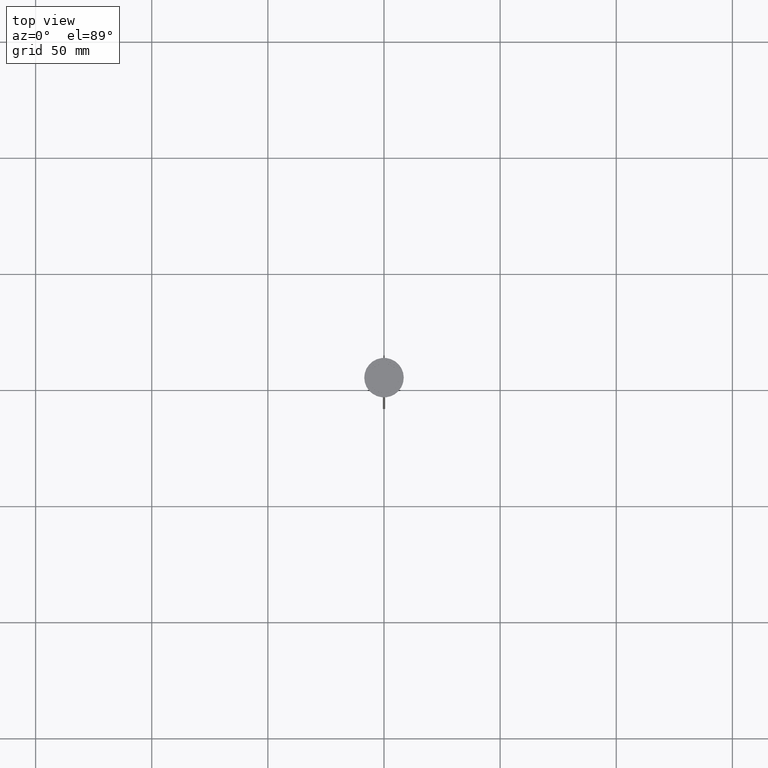
[diagram: clean part render]
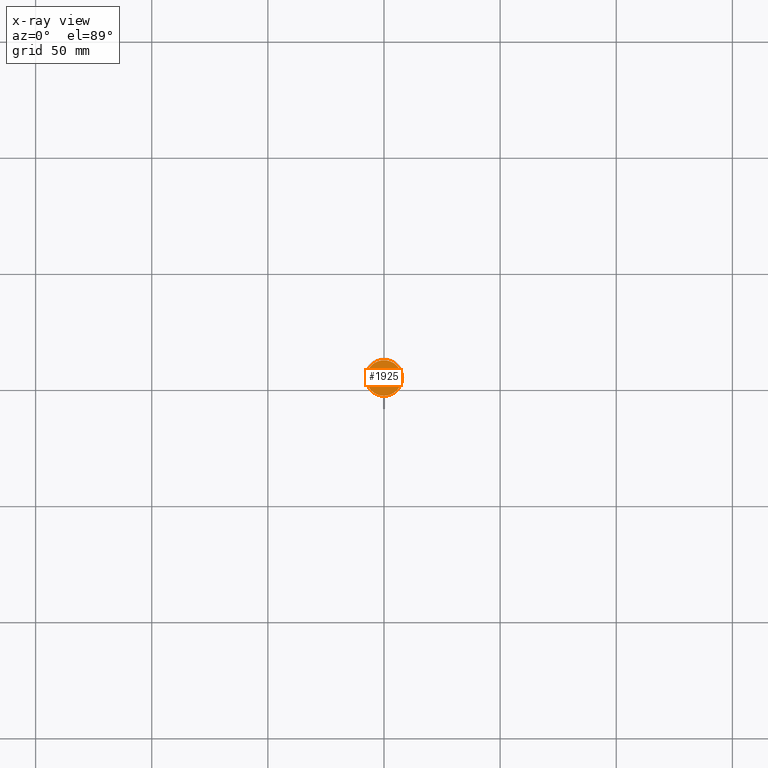
[diagram: x-ray — body ghosted, one internal face saturated and labeled with its STEP entity id]
A machine part, top view, then the same camera in x-ray: the body is ghosted and one INTERNAL B-rep face — a face not visible from any outside direction — is saturated and labeled: STEP entity #1925.
In plain terms, the highlighted planar face has unit normal (0, 0, -1).
Its self-contained STEP definition (entity closure, byte-faithful):
#17 = CIRCLE ( 'NONE', #1105, 7.700000000000001954 ) ;
#224 = EDGE_CURVE ( 'NONE', #299, #281, #17, .T. ) ;
#232 = DIRECTION ( 'NONE',  ( 0.000000000000000000, 0.000000000000000000, -1.000000000000000000 ) ) ;
#281 = VERTEX_POINT ( 'NONE', #301 ) ;
#290 = CARTESIAN_POINT ( 'NONE',  ( 0.000000000000000000, 0.000000000000000000, -12.00000000000000000 ) ) ;
#299 = VERTEX_POINT ( 'NONE', #1100 ) ;
#301 = CARTESIAN_POINT ( 'NONE',  ( 7.700000000000001954, 9.613477373306725302E-16, -12.00000000000000000 ) ) ;
#563 = DIRECTION ( 'NONE',  ( -1.000000000000000000, 0.000000000000000000, -0.000000000000000000 ) ) ;
#595 = CIRCLE ( 'NONE', #1997, 7.700000000000001954 ) ;
#1100 = CARTESIAN_POINT ( 'NONE',  ( -7.700000000000001954, 0.000000000000000000, -12.00000000000000000 ) ) ;
#1105 = AXIS2_PLACEMENT_3D ( 'NONE', #290, #2166, #1206 ) ;
#1206 = DIRECTION ( 'NONE',  ( -1.000000000000000000, 0.000000000000000000, 0.000000000000000000 ) ) ;
#1594 = AXIS2_PLACEMENT_3D ( 'NONE', #1934, #232, #563 ) ;
#1786 = DIRECTION ( 'NONE',  ( -0.000000000000000000, -0.000000000000000000, 1.000000000000000000 ) ) ;
#1787 = EDGE_LOOP ( 'NONE', ( #2410, #2334 ) ) ;
#1823 = CARTESIAN_POINT ( 'NONE',  ( 0.000000000000000000, 0.000000000000000000, -12.00000000000000000 ) ) ;
#1923 = FACE_OUTER_BOUND ( 'NONE', #1787, .T. ) ;
#1925 = ADVANCED_FACE ( 'NONE', ( #1923 ), #2294, .F. ) ;
#1934 = CARTESIAN_POINT ( 'NONE',  ( 0.000000000000000000, 0.000000000000000000, -12.00000000000000000 ) ) ;
#1997 = AXIS2_PLACEMENT_3D ( 'NONE', #1823, #1786, #2383 ) ;
#2082 = EDGE_CURVE ( 'NONE', #281, #299, #595, .T. ) ;
#2166 = DIRECTION ( 'NONE',  ( -0.000000000000000000, -0.000000000000000000, 1.000000000000000000 ) ) ;
#2294 = PLANE ( 'NONE',  #1594 ) ;
#2334 = ORIENTED_EDGE ( 'NONE', *, *, #2082, .T. ) ;
#2383 = DIRECTION ( 'NONE',  ( -1.000000000000000000, 0.000000000000000000, 0.000000000000000000 ) ) ;
#2410 = ORIENTED_EDGE ( 'NONE', *, *, #224, .T. ) ;